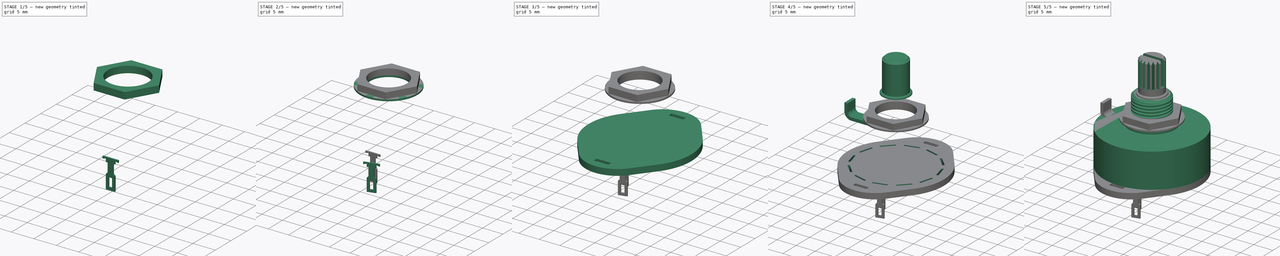
[diagram: build sequence overview — one tinted view per stage of 5, left to right]
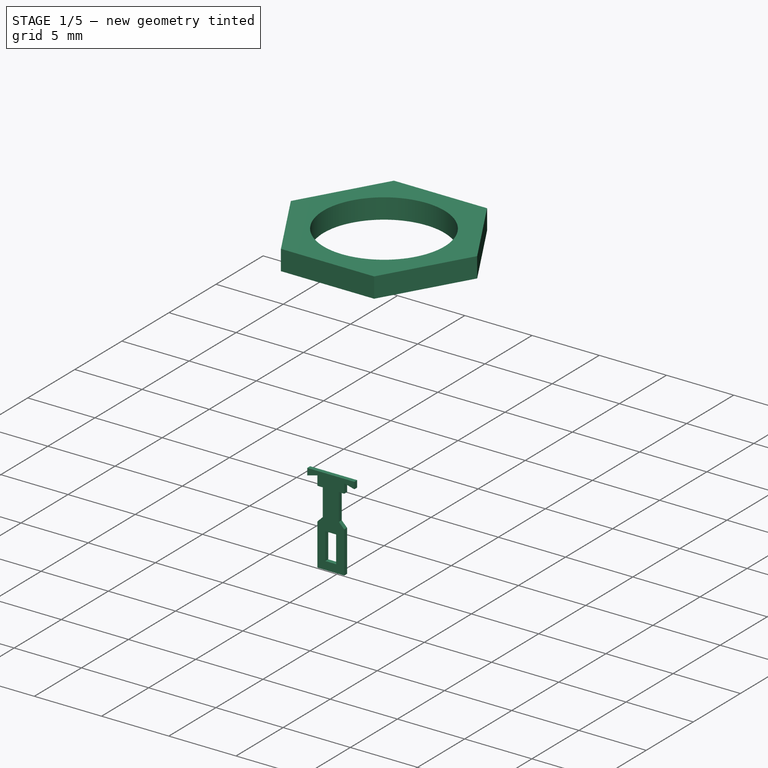
[diagram: stage 1 of 5 — iso view after this stage's code; geometry added in this stage tinted green]
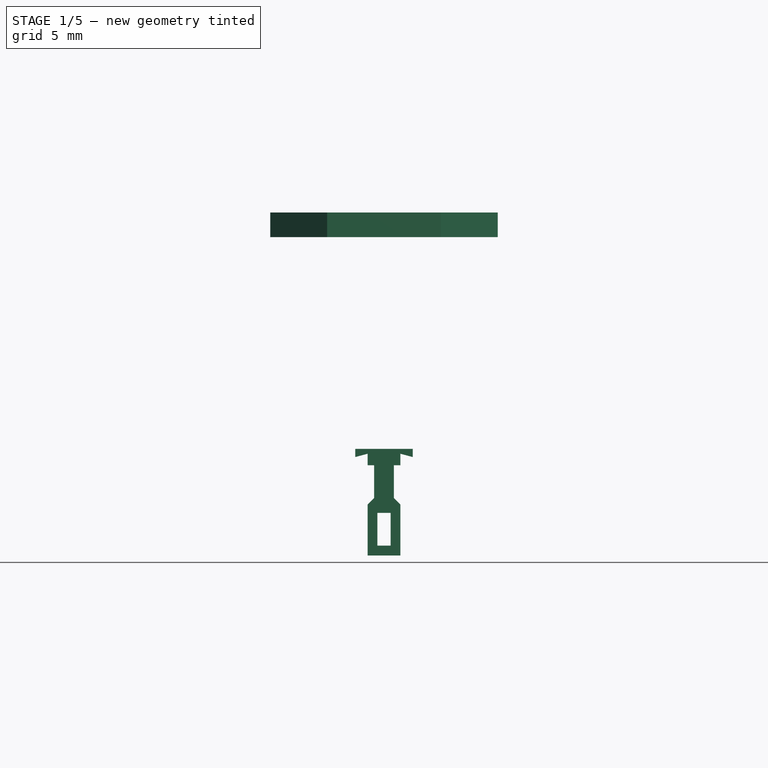
[diagram: stage 1 of 5 — front view after this stage's code; geometry added in this stage tinted green]
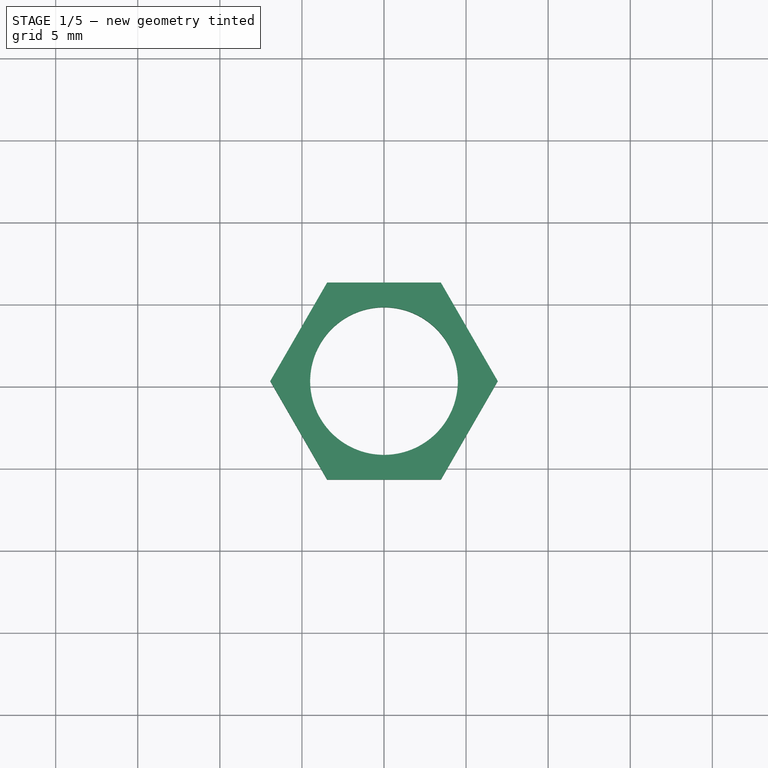
[diagram: stage 1 of 5 — top view after this stage's code; geometry added in this stage tinted green]
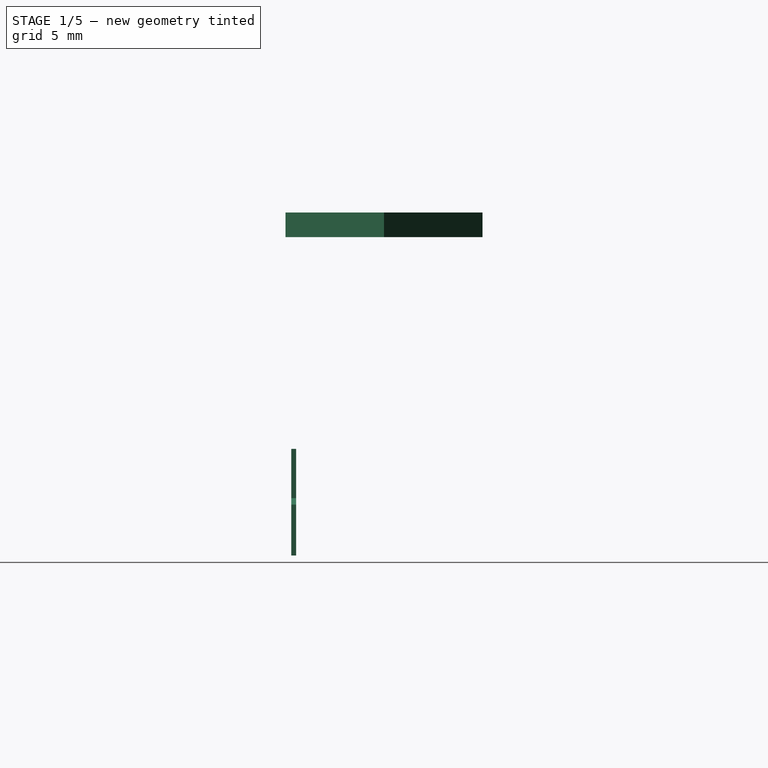
[diagram: stage 1 of 5 — right view after this stage's code; geometry added in this stage tinted green]
FCSTD DOCUMENT  (FreeCAD 0.19R16945 (Git))
Label: Alpha Taiwan SR25 Series
License: All rights reserved
LicenseURL: http://en.wikipedia.org/wiki/All_rights_reserved
objects: PartDesign::Body×28, Sketcher::SketchObject×18, PartDesign::FeatureBase×18, PartDesign::Pad×12, PartDesign::Plane×6, PartDesign::Pocket×5, PartDesign::PolarPattern×4, PartDesign::FeaturePython×3, PartDesign::Chamfer×3, PartDesign::Mirrored×1, PartDesign::MultiTransform×1, Part::Helix×1, PartDesign::ShapeBinder×1, PartDesign::SubtractivePipe×1, PartDesign::Boolean×1
note: 121 computed .brp shape members not serialized (recipe doc carries the construction recipe); baked Part::Feature solids carry a one-line shape summary decoded from their .brp

FEATURE [PartDesign::Body] Body  label="Wafer"
  Group = -> [Sketch,Pad,Sketch006,Pocket,PolarPattern,Sketch014,Pocket004,PolarPattern003]
  Origin = -> Origin
  Tip = -> PolarPattern003
FEATURE [Sketcher::SketchObject] Sketch015
  AttachmentOffset = pos=(0,0,10) rot=(0,1,0;0rad)
  MapMode = 5
  Placement = pos=(0,-10,-2.2e-15) rot=(1,0,0;1.5708rad)
  Support = -> [XZ_Plane008]
  sketch-geometry (20):
    g0: LineSegment StartX=-1 StartY=-6.5 StartZ=0 EndX=-1 EndY=-3.4 EndZ=0
    g1: LineSegment StartX=-1 StartY=-3.4 StartZ=0 EndX=-0.6 EndY=-3 EndZ=0
    g2: LineSegment StartX=-0.6 StartY=-3 StartZ=0 EndX=-0.6 EndY=-1 EndZ=0
    g3: LineSegment StartX=-0.6 StartY=-1 StartZ=0 EndX=-1 EndY=-1 EndZ=0
    g4: LineSegment StartX=-1 StartY=-1 StartZ=0 EndX=-1 EndY=-0.299038 EndZ=0
    g5: LineSegment StartX=-1 StartY=-0.299038 StartZ=0 EndX=-1.75 EndY=-0.5 EndZ=0
    g6: LineSegment StartX=-1.75 StartY=-0.5 StartZ=0 EndX=-1.75 EndY=0 EndZ=0
    g7: LineSegment StartX=1 StartY=-6.5 StartZ=0 EndX=1 EndY=-3.4 EndZ=0
    g8: LineSegment StartX=1 StartY=-3.4 StartZ=0 EndX=0.6 EndY=-3 EndZ=0
    g9: LineSegment StartX=0.6 StartY=-3 StartZ=0 EndX=0.6 EndY=-1 EndZ=0
    g10: LineSegment StartX=0.6 StartY=-1 StartZ=0 EndX=1 EndY=-1 EndZ=0
    g11: LineSegment StartX=1 StartY=-1 StartZ=0 EndX=1 EndY=-0.299038 EndZ=0
    g12: LineSegment StartX=1 StartY=-0.299038 StartZ=0 EndX=1.75 EndY=-0.5 EndZ=0
    g13: LineSegment StartX=1.75 StartY=-0.5 StartZ=0 EndX=1.75 EndY=0 EndZ=0
    g14: LineSegment StartX=-1 StartY=-6.5 StartZ=0 EndX=1 EndY=-6.5 EndZ=0
    g15: LineSegment StartX=-1.75 StartY=0 StartZ=0 EndX=1.75 EndY=0 EndZ=0
    g16: LineSegment StartX=-0.4 StartY=-5.9 StartZ=0 EndX=0.4 EndY=-5.9 EndZ=0
    g17: LineSegment StartX=0.4 StartY=-5.9 StartZ=0 EndX=0.4 EndY=-3.9 EndZ=0
    g18: LineSegment StartX=0.4 StartY=-3.9 StartZ=0 EndX=-0.4 EndY=-3.9 EndZ=0
    g19: LineSegment StartX=-0.4 StartY=-3.9 StartZ=0 EndX=-0.4 EndY=-5.9 EndZ=0
  constraints (57):
    c: Vertical(g0)
    c: Coincident(g0,g1)
    c: Coincident(g1,g2)
    c: Vertical(g2)
    c: Coincident(g2,g3)
    c: Horizontal(g3)
    c: Coincident(g3,g4)
    c: Vertical(g4)
    c: Coincident(g4,g5)
    c: Coincident(g5,g6)
    c: Vertical(g6)
    c: DistanceY(g0,g1) = 3.5
    c: Angle(g0,g1) = 2.35619
    c: DistanceX(g1,g-1) = 0.6
    c: PointOnObject(g6,g-1)
    c: Vertical(g3,g0)
    c: DistanceX(g5,g-1) = 1.75
    c: DistanceY(g0,g6) = 6.5
    c: Vertical(g7)
    c: Coincident(g7,g8)
    c: Coincident(g8,g9)
    c: Vertical(g9)
    c: Coincident(g9,g10)
    c: Horizontal(g10)
    c: Coincident(g10,g11)
    c: Vertical(g11)
    c: Coincident(g11,g12)
    c: Coincident(g12,g13)
    c: Vertical(g13)
    c: Coincident(g14,g0)
    c: Coincident(g14,g7)
    c: Coincident(g15,g6)
    c: Coincident(g15,g13)
    c: Horizontal(g15)
    c: Coincident(g16,g17)
    c: Coincident(g17,g18)
    c: Coincident(g18,g19)
    c: Coincident(g19,g16)
    c: Horizontal(g16)
    c: Vertical(g17)
    c: Vertical(g19)
    c: Symmetric(g17,g18,g-2)
    c: DistanceX(g16,g16) = 0.8
    c: DistanceY(g17,g17) = 2
    c: Equal(g7,g0)
    c: Symmetric(g7,g0,g-2)
    c: DistanceX(g14,g14) = 2
    c: Symmetric(g8,g1,g-2)
    c: Equal(g2,g9)
    c: Equal(g3,g10)
    c: Equal(g4,g11)
    c: Equal(g13,g6)
    c: Angle(g5,g4) = 1.309
    c: Equal(g12,g5)
    c: DistanceY(g6,g6) = 0.5
    c: DistanceY(g7,g16) = 0.6
    c: DistanceY(g3,g6) = 1
FEATURE [PartDesign::Pad] Pad009
  Length = 0.3
  Length2 = 100
  Midplane = true
  Placement = pos=(0,0,0) rot=(1,0,0;1.5708rad)
  Profile = -> Sketch015
  Type = 0
FEATURE [PartDesign::Body] Body019  label="Pin_Throw_12"
  BaseFeature = -> Body008
  Group = -> [Clone011]
  Origin = -> Origin019
  Placement = pos=(0,0,0) rot=(0,0,-1;0.523599rad)
  Tip = -> Clone011
FEATURE [PartDesign::FeatureBase] Clone012
  BaseFeature = -> Body008
FEATURE [PartDesign::Body] Body027  label="Washer"
  Group = -> [Sketch016,Pad010]
  Origin = -> Origin027
  Tip = -> Pad010
FEATURE [Sketcher::SketchObject] Sketch017
  AttachmentOffset = pos=(0,0,12.9) rot=(0,0,1;0rad)
  MapMode = 5
  Placement = pos=(0,0,12.9) rot=(0,0,1;0rad)
  Support = -> [XY_Plane028]
  sketch-geometry (8):
    g0: Circle CenterX=0 CenterY=0 CenterZ=0 NormalX=0 NormalY=0 NormalZ=1 AngleXU=0 Radius=4.5
    g1: LineSegment StartX=6.9282 StartY=-5.0528e-12 StartZ=0 EndX=3.4641 EndY=6 EndZ=0
    g2: LineSegment StartX=3.4641 StartY=6 StartZ=0 EndX=-3.4641 EndY=6 EndZ=0
    g3: LineSegment StartX=-3.4641 StartY=6 StartZ=0 EndX=-6.9282 EndY=5.7572e-12 EndZ=0
    g4: LineSegment StartX=-6.9282 StartY=5.7572e-12 StartZ=0 EndX=-3.4641 EndY=-6 EndZ=0
    g5: LineSegment StartX=-3.4641 StartY=-6 StartZ=0 EndX=3.4641 EndY=-6 EndZ=0
    g6: LineSegment StartX=3.4641 StartY=-6 StartZ=0 EndX=6.9282 EndY=-5.0528e-12 EndZ=0
    g7: Circle [constr] CenterX=0 CenterY=0 CenterZ=0 NormalX=0 NormalY=0 NormalZ=1 AngleXU=0 Radius=6.9282
  constraints (18):
    c: Coincident(g0,g-1)
    c: Radius(g0) = 4.5
    c: Coincident(g1,g2)
    c: Coincident(g2,g3)
    c: Coincident(g3,g4)
    c: Coincident(g4,g5)
    c: Coincident(g5,g6)
    c: Coincident(g6,g1)
    c: Equal(g1, g2-g6) x5
    c: PointOnObject(g1,g7)
    c: PointOnObject(g2,g7)
    c: PointOnObject(g3,g7)
    c: PointOnObject(g4,g7)
    c: PointOnObject(g5,g7)
    c: PointOnObject(g6,g7)
    c: Coincident(g7,g0)
    c: Horizontal(g2)
    c: DistanceY(g5,g1) = 12
FEATURE [PartDesign::Pad] Pad011
  Length = 1.5
  Length2 = 100
  Profile = -> Sketch017
  Type = 0
FEATURE [PartDesign::Body] Body028  label="Nut"
  Group = -> [Sketch017,Pad011]
  Origin = -> Origin028
  Tip = -> Pad011
FEATURE [PartDesign::FeatureBase] Clone013
  BaseFeature = -> Body021
  Placement = pos=(0,4.5,0) rot=(0,0,1;0rad)
FEATURE [PartDesign::Body] Body029  label="Pin_Pole_2"
  BaseFeature = -> Body021
  Group = -> [Clone013]
  Origin = -> Origin029
  Placement = pos=(0,0,0) rot=(0,0,1;1.0472rad)
  Tip = -> Clone013
FEATURE [PartDesign::FeatureBase] Clone014
  BaseFeature = -> Body021
  Placement = pos=(0,4.5,0) rot=(0,0,1;0rad)
FEATURE [PartDesign::Body] Body030  label="Pin_Pole_3"
  BaseFeature = -> Body021
  Group = -> [Clone014]
  Origin = -> Origin030
  Placement = pos=(0,0,0) rot=(0,0,1;2.0944rad)
  Tip = -> Clone014
FEATURE [PartDesign::FeatureBase] Clone015
  BaseFeature = -> Body021
  Placement = pos=(0,4.5,0) rot=(0,0,1;0rad)
FEATURE [PartDesign::Body] Body031  label="Pin_Pole_4"
  BaseFeature = -> Body021
  Group = -> [Clone015]
  Origin = -> Origin031
  Placement = pos=(0,0,0) rot=(0,0,1;3.14159rad)
  Tip = -> Clone015
FEATURE [PartDesign::FeatureBase] Clone016
  BaseFeature = -> Body021
  Placement = pos=(0,4.5,0) rot=(0,0,1;0rad)
FEATURE [PartDesign::Body] Body032  label="Pin_Pole_5"
  BaseFeature = -> Body021
  Group = -> [Clone016]
  Origin = -> Origin032
  Placement = pos=(0,0,0) rot=(0,0,1;4.18879rad)
  Tip = -> Clone016
FEATURE [PartDesign::FeatureBase] Clone017
  BaseFeature = -> Body021
  Placement = pos=(0,4.5,0) rot=(0,0,1;0rad)
FEATURE [PartDesign::Body] Body033  label="Pin_Pole_6"
  BaseFeature = -> Body021
  Group = -> [Clone017]
  Origin = -> Origin033
  Placement = pos=(0,0,0) rot=(0,0,-1;1.0472rad)
  Tip = -> Clone017
FEATURE [PartDesign::Body] Body002  label="Bracket"
  Group = -> [Sketch002,Pad004,MultiTransform,Mirrored,Bend,Bend001,Sketch005,Pad005,Sketch007,Pocket001,PolarPattern001,Boolean]
  Origin = -> Origin002
  Tip = -> Boolean
FEATURE [PartDesign::Body] Body006  label="BracketClone"
  BaseFeature = -> Body002
  Group = -> [Clone]
  Origin = -> Origin006
  Placement = pos=(0,0,0) rot=(0,0,1;3.14159rad)
  Tip = -> Clone
FEATURE [PartDesign::FeatureBase] Clone
  BaseFeature = -> Body002
FEATURE [PartDesign::Boolean] Boolean
  BaseFeature = -> PolarPattern001
  Group = -> [Body006]
  Type = 0
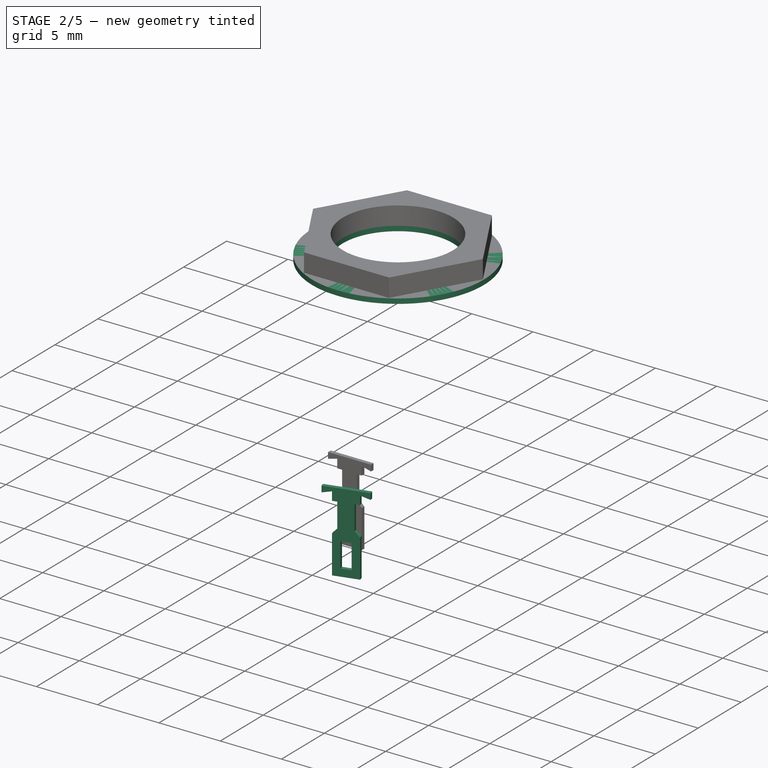
[diagram: stage 2 of 5 — iso view after this stage's code; geometry added in this stage tinted green]
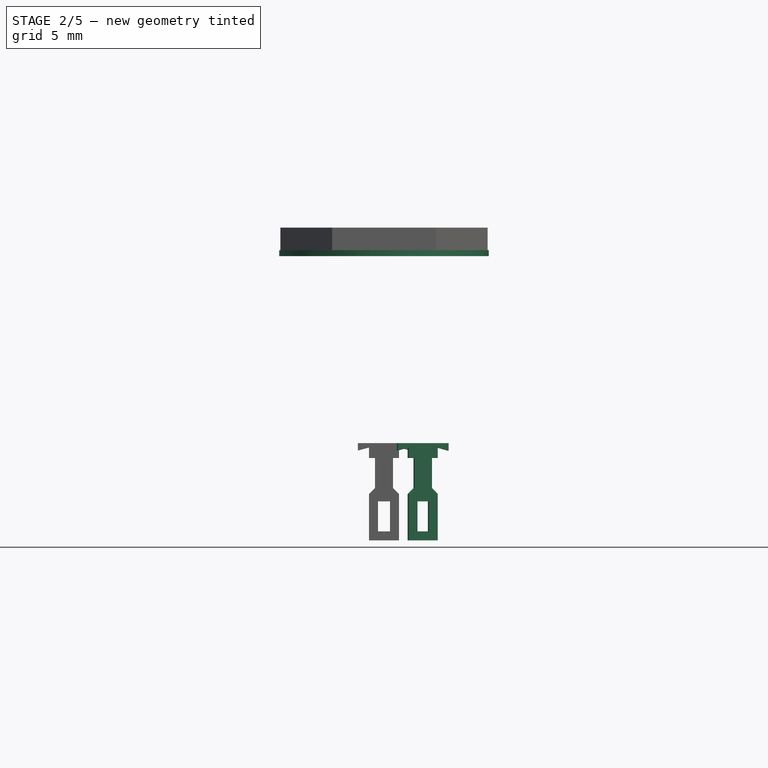
[diagram: stage 2 of 5 — front view after this stage's code; geometry added in this stage tinted green]
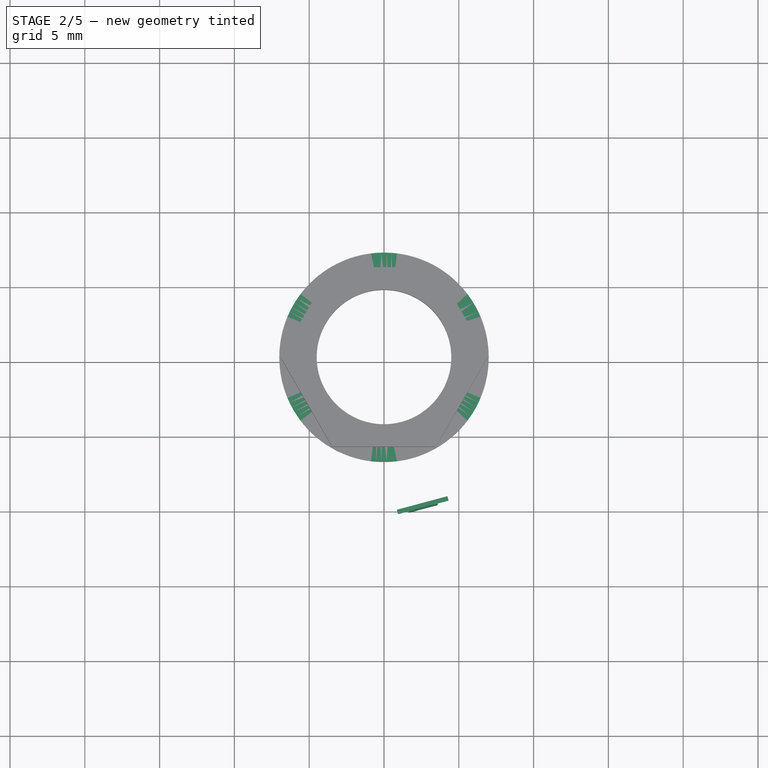
[diagram: stage 2 of 5 — top view after this stage's code; geometry added in this stage tinted green]
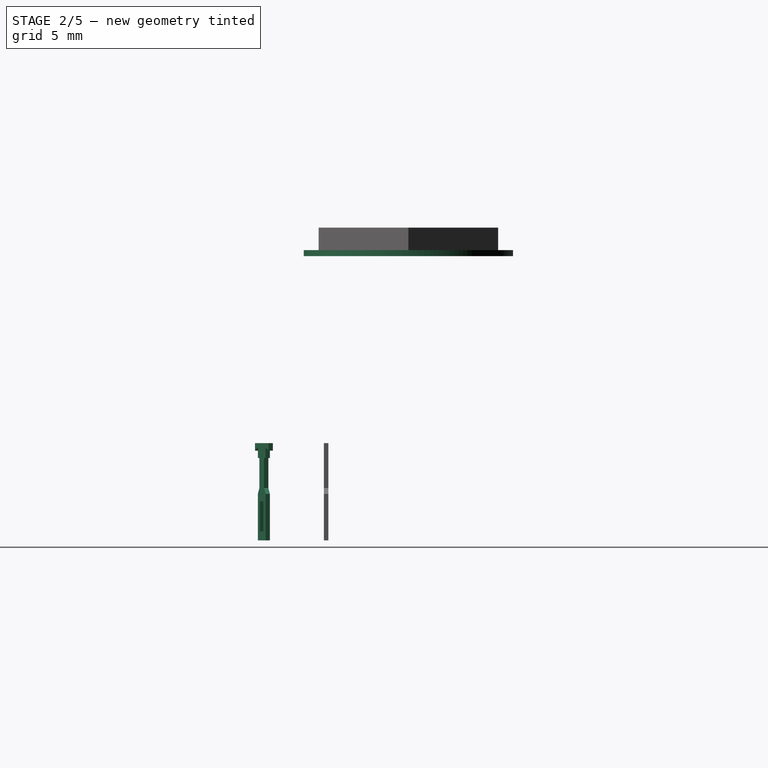
[diagram: stage 2 of 5 — right view after this stage's code; geometry added in this stage tinted green]
FEATURE [PartDesign::Body] Body012  label="Pin_Throw_5"
  BaseFeature = -> Body008
  Group = -> [Clone004]
  Origin = -> Origin012
  Placement = pos=(0,0,0) rot=(0,0,1;2.0944rad)
  Tip = -> Clone004
FEATURE [PartDesign::FeatureBase] Clone005
  BaseFeature = -> Body008
  Placement = pos=(0,0,0) rot=(0,0,1;0.261799rad)
FEATURE [PartDesign::Body] Body013  label="Pin_Throw_6"
  BaseFeature = -> Body008
  Group = -> [Clone005]
  Origin = -> Origin013
  Placement = pos=(0,0,0) rot=(0,0,1;2.61799rad)
  Tip = -> Clone005
FEATURE [PartDesign::FeatureBase] Clone006
  BaseFeature = -> Body008
  Placement = pos=(0,0,0) rot=(0,0,1;0.261799rad)
FEATURE [PartDesign::Body] Body014  label="Pin_Throw_7"
  BaseFeature = -> Body008
  Group = -> [Clone006]
  Origin = -> Origin014
  Placement = pos=(0,0,0) rot=(0,0,1;3.14159rad)
  Tip = -> Clone006
FEATURE [PartDesign::FeatureBase] Clone007
  BaseFeature = -> Body008
  Placement = pos=(0,0,0) rot=(0,0,1;0.261799rad)
FEATURE [PartDesign::Body] Body015  label="Pin_Throw_8"
  BaseFeature = -> Body008
  Group = -> [Clone007]
  Origin = -> Origin015
  Placement = pos=(0,0,0) rot=(0,0,1;3.66519rad)
  Tip = -> Clone007
FEATURE [PartDesign::FeatureBase] Clone008
  BaseFeature = -> Body008
  Placement = pos=(0,0,0) rot=(0,0,1;0.261799rad)
FEATURE [PartDesign::Body] Body016  label="Pin_Throw_9"
  BaseFeature = -> Body008
  Group = -> [Clone008]
  Origin = -> Origin016
  Placement = pos=(0,0,0) rot=(0,0,1;4.18879rad)
  Tip = -> Clone008
FEATURE [PartDesign::FeatureBase] Clone009
  BaseFeature = -> Body008
  Placement = pos=(0,0,0) rot=(0,0,1;0.261799rad)
FEATURE [PartDesign::Body] Body017  label="Pin_Throw_10"
  BaseFeature = -> Body008
  Group = -> [Clone009]
  Origin = -> Origin017
  Placement = pos=(0,0,0) rot=(0,0,-1;1.5708rad)
  Tip = -> Clone009
FEATURE [PartDesign::FeatureBase] Clone010
  BaseFeature = -> Body008
  Placement = pos=(0,0,0) rot=(0,0,1;0.261799rad)
FEATURE [PartDesign::Body] Body018  label="Pin_Throw_11"
  BaseFeature = -> Body008
  Group = -> [Clone010]
  Origin = -> Origin018
  Placement = pos=(0,0,0) rot=(0,0,-1;1.0472rad)
  Tip = -> Clone010
FEATURE [PartDesign::FeatureBase] Clone011
  BaseFeature = -> Body008
  Placement = pos=(0,0,0) rot=(0,0,1;0.261799rad)
FEATURE [PartDesign::Body] Body021  label="Pin_Pole_1"
  BaseFeature = -> Body008
  Group = -> [Clone012]
  Origin = -> Origin021
  Placement = pos=(0,4.5,0) rot=(0,0,1;0rad)
  Tip = -> Clone012
FEATURE [Sketcher::SketchObject] Sketch016
  AttachmentOffset = pos=(0,0,12.5) rot=(0,0,1;0rad)
  MapMode = 5
  Placement = pos=(0,0,12.5) rot=(0,0,1;0rad)
  Support = -> [XY_Plane027]
  sketch-geometry (2):
    g0: Circle CenterX=0 CenterY=0 CenterZ=0 NormalX=0 NormalY=0 NormalZ=1 AngleXU=0 Radius=4.5
    g1: Circle CenterX=0 CenterY=0 CenterZ=0 NormalX=0 NormalY=0 NormalZ=1 AngleXU=0 Radius=7
  constraints (4):
    c: Coincident(g0,g-1)
    c: Coincident(g1,g0)
    c: Radius(g0) = 4.5
    c: Radius(g1) = 7
FEATURE [PartDesign::Pad] Pad010
  Length = 0.4
  Length2 = 100
  Profile = -> Sketch016
  Type = 0
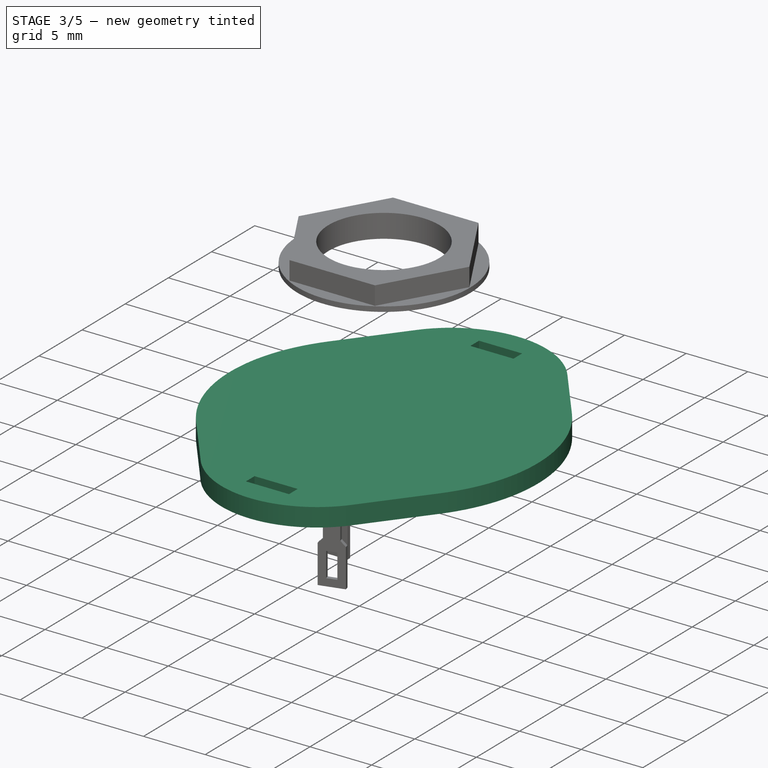
[diagram: stage 3 of 5 — iso view after this stage's code; geometry added in this stage tinted green]
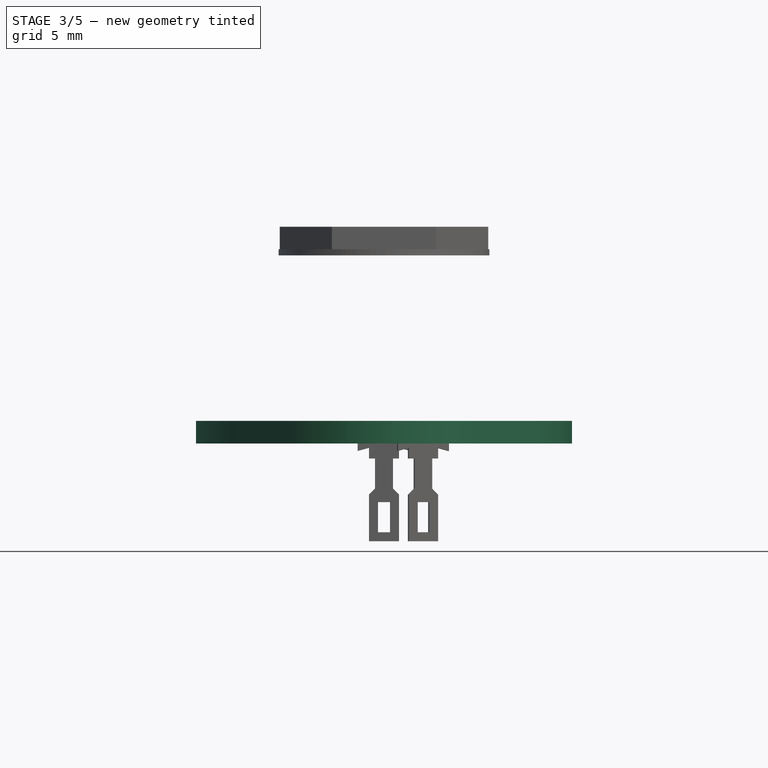
[diagram: stage 3 of 5 — front view after this stage's code; geometry added in this stage tinted green]
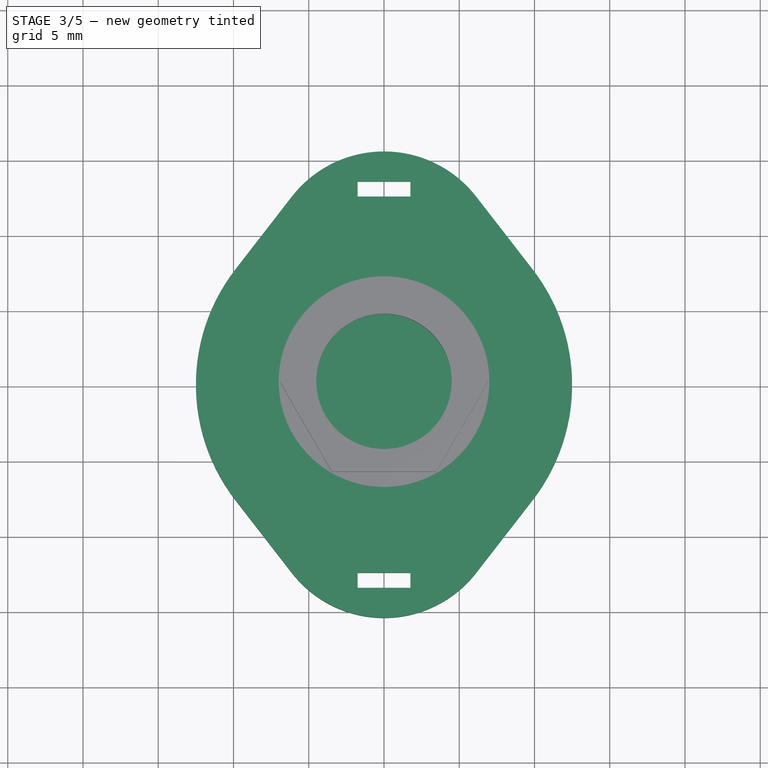
[diagram: stage 3 of 5 — top view after this stage's code; geometry added in this stage tinted green]
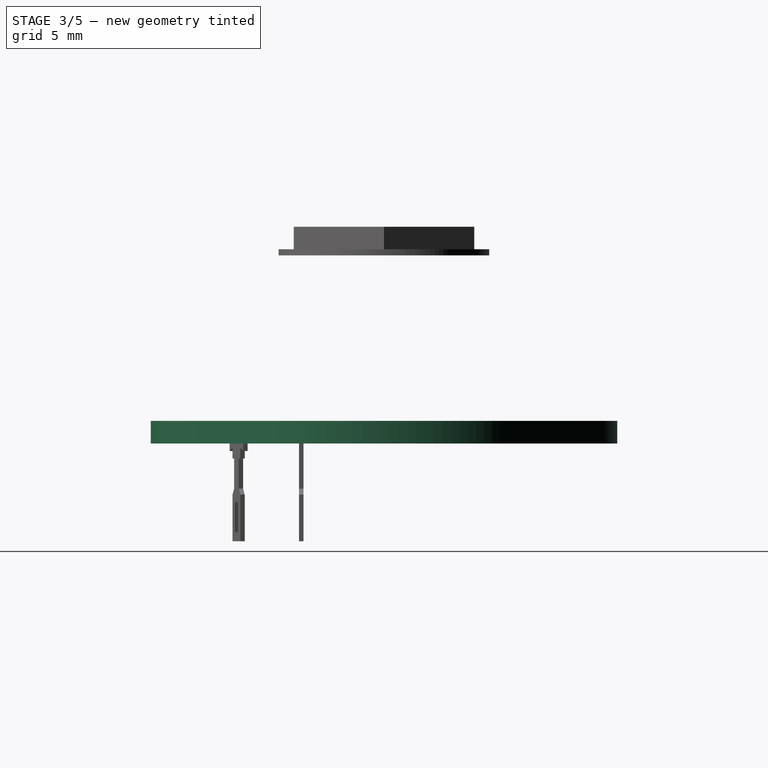
[diagram: stage 3 of 5 — right view after this stage's code; geometry added in this stage tinted green]
FEATURE [Sketcher::SketchObject] Sketch
  MapMode = 5
  Support = -> [XY_Plane]
  sketch-geometry (12):
    g0: Circle [constr] CenterX=0 CenterY=0 CenterZ=0 NormalX=0 NormalY=0 NormalZ=1 AngleXU=0 Radius=12.5
    g1: Circle [constr] CenterX=0 CenterY=0 CenterZ=0 NormalX=0 NormalY=0 NormalZ=1 AngleXU=0 Radius=15.5
    g2: Circle [constr] CenterX=0 CenterY=7.75 CenterZ=0 NormalX=0 NormalY=0 NormalZ=1 AngleXU=0 Radius=7.75
    g3: Circle [constr] CenterX=0 CenterY=-7.75 CenterZ=0 NormalX=0 NormalY=0 NormalZ=1 AngleXU=0 Radius=7.75
    g4: ArcOfCircle CenterX=0 CenterY=0 CenterZ=0 NormalX=0 NormalY=0 NormalZ=1 AngleXU=0 Radius=12.5 StartAngle=2.48186 EndAngle=3.80132
    g5: ArcOfCircle CenterX=0 CenterY=0 CenterZ=0 NormalX=0 NormalY=0 NormalZ=1 AngleXU=0 Radius=12.5 StartAngle=5.62346 EndAngle=6.94291
    g6: ArcOfCircle CenterX=0 CenterY=-7.75 CenterZ=0 NormalX=0 NormalY=0 NormalZ=1 AngleXU=0 Radius=7.75 StartAngle=3.80132 EndAngle=5.62346
    g7: LineSegment StartX=-9.87697 StartY=-7.66129 StartZ=0 EndX=-6.12372 EndY=-12.5 EndZ=0
    g8: LineSegment StartX=6.12372 StartY=-12.5 StartZ=0 EndX=9.877 EndY=-7.66126 EndZ=0
    g9: ArcOfCircle CenterX=0 CenterY=7.75 CenterZ=0 NormalX=0 NormalY=0 NormalZ=1 AngleXU=0 Radius=7.75 StartAngle=0.659726 EndAngle=2.48186
    g10: LineSegment StartX=-9.87697 StartY=7.66129 StartZ=0 EndX=-6.12372 EndY=12.5 EndZ=0
    g11: LineSegment StartX=6.12374 StartY=12.5 StartZ=0 EndX=9.877 EndY=7.66126 EndZ=0
  constraints (32):
    c: Coincident(g0,g-1)
    c: Coincident(g1,g-1)
    c: Radius(g0) = 12.5
    c: Radius(g1) = 15.5
    c: PointOnObject(g2,g-2)
    c: Tangent(g2,g1)
    c: PointOnObject(g3,g-2)
    c: Tangent(g3,g1)
    c: Coincident(g4,g-1)
    c: Symmetric(g4,g4,g-1)
    c: Coincident(g5,g4)
    c: Symmetric(g5,g5,g-1)
    c: Tangent(g3,g-1)
    c: Tangent(g2,g-1)
    c: Coincident(g6,g3)
    c: PointOnObject(g6,g3)
    c: Tangent(g7,g6) = -1.5708
    c: Tangent(g7,g4) = -1.5708
    c: Coincident(g8,g5)
    c: Tangent(g8,g0)
    c: Tangent(g8,g6) = -1.5708
    c: Coincident(g9,g2)
    c: PointOnObject(g9,g2)
    c: Coincident(g10,g4)
    c: Coincident(g10,g9)
    c: Tangent(g10,g0)
    c: Coincident(g11,g9)
    c: Coincident(g11,g5)
    c: Tangent(g10,g4)
    c: Tangent(g10,g9)
    c: Tangent(g9,g11)
    c: Tangent(g5,g11)
FEATURE [PartDesign::Pad] Pad
  Length = 1.5
  Length2 = 100
  Profile = -> Sketch
  Type = 0
FEATURE [PartDesign::Pad] Pad004
  Length = 1
  Length2 = 100
  Placement = pos=(0,0,0) rot=(1,0,0;1.5708rad)
  Profile = -> Sketch002
  Reversed = true
  Type = 0
FEATURE [PartDesign::Mirrored] Mirrored
  MirrorPlane = -> Sketch002 [V_Axis]
  Placement = pos=(0,0,0) rot=(1,0,0;1.5708rad)
FEATURE [PartDesign::MultiTransform] MultiTransform
  BaseFeature = -> Pad004
  Originals = -> [Pad004]
  Placement = pos=(0,0,0) rot=(1,0,0;1.5708rad)
  Transformations = -> [Mirrored]
FEATURE [PartDesign::FeaturePython] Bend  # WARN: FeaturePython — macro-defined, semantics opaque (R4)
  AutoMiter = true
  BaseFeature = -> MultiTransform
  BendType = 0
  LengthList = [2]
  ReliefFactor = 0.7
  UseReliefFactor = false
  angle = 90
  baseObject = -> MultiTransform [Face28,Face2]
  bendAList = [90]
  extend1 = 0
  extend2 = 0
  gap1 = 0
  gap2 = 0
  invert = false
  kfactor = 0.5
  length = 2
  miterangle1 = 0
  miterangle2 = 0
  offset = 0
  radius = 0.001
  reliefType = 0
  reliefd = 1
  reliefw = 0.8
  sketchflip = false
  sketchinvert = false
  unfold = false
FEATURE [PartDesign::FeaturePython] Bend001  # WARN: FeaturePython — macro-defined, semantics opaque (R4)
  AutoMiter = true
  BaseFeature = -> Bend
  BendType = 0
  LengthList = [2]
  ReliefFactor = 0.7
  UseReliefFactor = false
  angle = 90
  baseObject = -> MultiTransform [Face28,Face2]
  bendAList = [90]
  extend1 = 0
  extend2 = 0
  gap1 = 0
  gap2 = 0
  invert = false
  kfactor = 0.5
  length = 2
  miterangle1 = 0
  miterangle2 = 0
  offset = 0
  radius = 0.001
  reliefType = 0
  reliefd = 1
  reliefw = 0.8
  sketchflip = false
  sketchinvert = false
  unfold = false
FEATURE [Sketcher::SketchObject] Sketch005
  AttachmentOffset = pos=(0,0,10.5) rot=(0,0,1;0rad)
  MapMode = 5
  Placement = pos=(0,0,10.5) rot=(0,0,1;0rad)
  Support = -> [XY_Plane002]
  sketch-geometry (1):
    g0: Circle CenterX=0 CenterY=0 CenterZ=0 NormalX=0 NormalY=0 NormalZ=1 AngleXU=0 Radius=12
  constraints (2):
    c: Coincident(g0,g-1)
    c: Radius(g0) = 12
FEATURE [PartDesign::Pad] Pad005
  BaseFeature = -> Bend001
  Length = 1.05
  Length2 = 100
  Profile = -> Sketch005
  Type = 0
FEATURE [Sketcher::SketchObject] Sketch006
  MapMode = 5
  Support = -> [XY_Plane]
  sketch-geometry (4):
    g0: LineSegment StartX=-1.75 StartY=-12.5 StartZ=0 EndX=1.75 EndY=-12.5 EndZ=0
    g1: LineSegment StartX=1.75 StartY=-12.5 StartZ=0 EndX=1.75 EndY=-13.5 EndZ=0
    g2: LineSegment StartX=1.75 StartY=-13.5 StartZ=0 EndX=-1.75 EndY=-13.5 EndZ=0
    g3: LineSegment StartX=-1.75 StartY=-13.5 StartZ=0 EndX=-1.75 EndY=-12.5 EndZ=0
  constraints (11):
    c: Coincident(g0,g1)
    c: Coincident(g1,g2)
    c: Coincident(g2,g3)
    c: Coincident(g3,g0)
    c: Horizontal(g2)
    c: Vertical(g1)
    c: Vertical(g3)
    c: Symmetric(g0,g0,g-2)
    c: DistanceY(g1,g1) = 1
    c: DistanceX(g2,g2) = 3.5
    c: DistanceY(g1,g-1) = 13.5
FEATURE [PartDesign::Pocket] Pocket
  BaseFeature = -> Pad
  Length = 1
  Length2 = 100
  Profile = -> Sketch006
  Reversed = true
  Type = 1
FEATURE [PartDesign::PolarPattern] PolarPattern
  Angle = 360
  Axis = -> Sketch006 [N_Axis]
  BaseFeature = -> Pocket
  Occurrences = 2
  Originals = -> [Pocket]
FEATURE [PartDesign::Body] Body008  label="Pin_Throw_1"
  Group = -> [Sketch015,Pad009]
  Origin = -> Origin008
  Placement = pos=(0,0,0) rot=(0,0,1;0.261799rad)
  Tip = -> Pad009
FEATURE [PartDesign::FeatureBase] Clone001
  BaseFeature = -> Body008
  Placement = pos=(0,0,0) rot=(0,0,1;0.261799rad)
FEATURE [PartDesign::Body] Body009  label="Pin_Throw_2"
  BaseFeature = -> Body008
  Group = -> [Clone001]
  Origin = -> Origin009
  Placement = pos=(0,0,0) rot=(0,0,1;0.523599rad)
  Tip = -> Clone001
FEATURE [PartDesign::FeatureBase] Clone002
  BaseFeature = -> Body008
  Placement = pos=(0,0,0) rot=(0,0,1;0.261799rad)
FEATURE [PartDesign::Body] Body010  label="Pin_Throw_3"
  BaseFeature = -> Body008
  Group = -> [Clone002]
  Origin = -> Origin010
  Placement = pos=(0,0,0) rot=(0,0,1;1.0472rad)
  Tip = -> Clone002
FEATURE [PartDesign::FeatureBase] Clone003
  BaseFeature = -> Body008
  Placement = pos=(0,0,0) rot=(0,0,1;0.261799rad)
FEATURE [PartDesign::Body] Body011  label="Pin_Throw_4"
  BaseFeature = -> Body008
  Group = -> [Clone003]
  Origin = -> Origin011
  Placement = pos=(0,0,0) rot=(0,0,1;1.5708rad)
  Tip = -> Clone003
FEATURE [PartDesign::FeatureBase] Clone004
  BaseFeature = -> Body008
  Placement = pos=(0,0,0) rot=(0,0,1;0.261799rad)
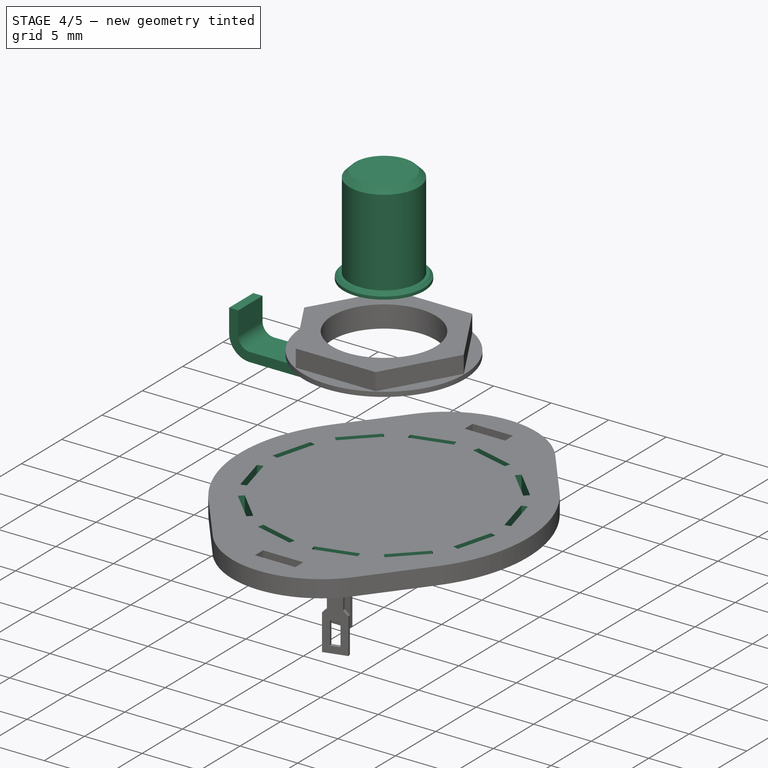
[diagram: stage 4 of 5 — iso view after this stage's code; geometry added in this stage tinted green]
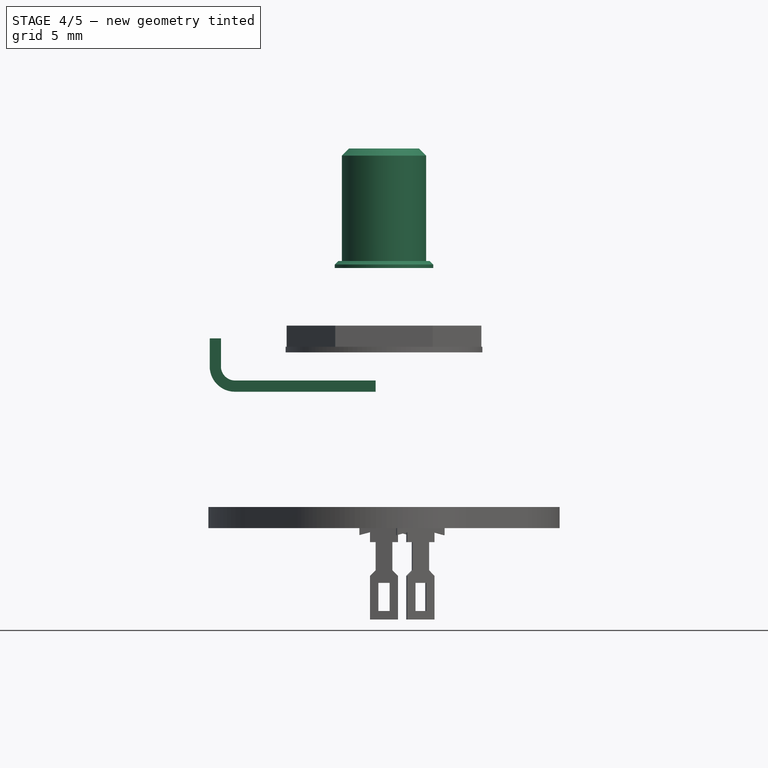
[diagram: stage 4 of 5 — front view after this stage's code; geometry added in this stage tinted green]
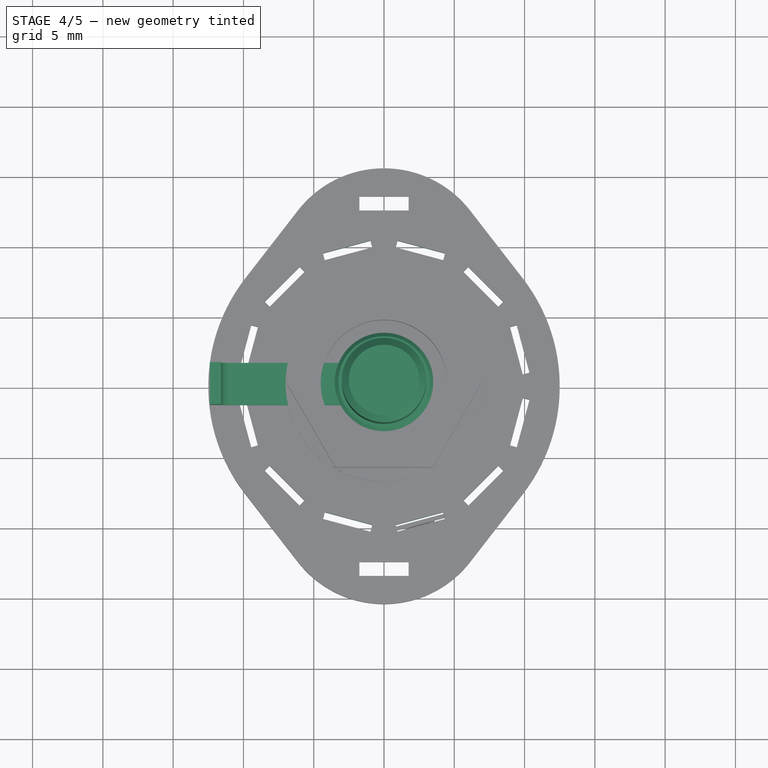
[diagram: stage 4 of 5 — top view after this stage's code; geometry added in this stage tinted green]
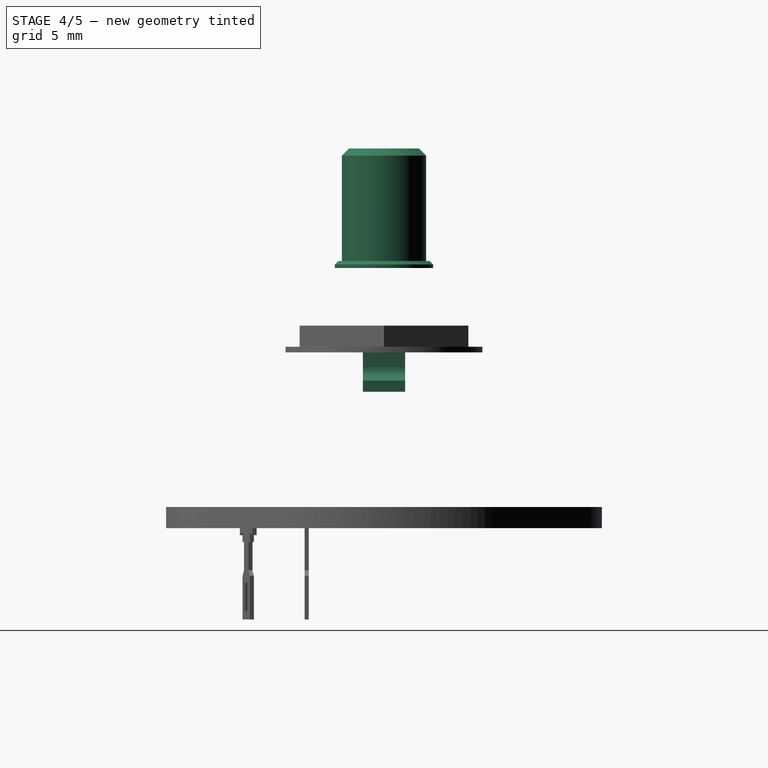
[diagram: stage 4 of 5 — right view after this stage's code; geometry added in this stage tinted green]
FEATURE [PartDesign::Body] Body004  label="Bushing"
  Group = -> [Sketch003,Pad002,Sketch004,Pad003,Chamfer,ShapeBinder,Sketch008,SubtractivePipe]
  Origin = -> Origin004
  Tip = -> SubtractivePipe
FEATURE [Sketcher::SketchObject] Sketch009
  AttachmentOffset = pos=(0,0,18.5) rot=(0,0,1;0rad)
  MapMode = 5
  Placement = pos=(0,0,18.5) rot=(0,0,1;0rad)
  Support = -> [XY_Plane005]
  sketch-geometry (1):
    g0: Circle CenterX=0 CenterY=0 CenterZ=0 NormalX=0 NormalY=0 NormalZ=1 AngleXU=0 Radius=3.5
  constraints (2):
    c: Coincident(g0,g-1)
    c: Radius(g0) = 3.5
FEATURE [PartDesign::Pad] Pad006
  Length = 0.5
  Length2 = 100
  Profile = -> Sketch009
  Type = 0
FEATURE [PartDesign::Chamfer] Chamfer001
  Base = -> Pad006 [Edge3]
  BaseFeature = -> Pad006
  Size = 0.25
FEATURE [Sketcher::SketchObject] Sketch010
  MapMode = 5
  Placement = pos=(0,0,19) rot=(0,0,1;0rad)
  Support = -> [Chamfer001]
  sketch-geometry (1):
    g0: Circle CenterX=0 CenterY=0 CenterZ=0 NormalX=0 NormalY=0 NormalZ=1 AngleXU=0 Radius=3
  constraints (2):
    c: Coincident(g0,g-1)
    c: Radius(g0) = 3
FEATURE [PartDesign::Pad] Pad007
  BaseFeature = -> Chamfer001
  Length = 8
  Length2 = 100
  Profile = -> Sketch010
  Type = 0
FEATURE [PartDesign::Plane] DatumPlane003  label="z=12.5"
  AttachmentOffset = pos=(0,0,12.5) rot=(0,0,1;0rad)
  Length = 24
  MapMode = 5
  Placement = pos=(0,0,12.5) rot=(0,0,1;0rad)
  ResizeMode = 0
  Support = -> [XY_Plane003]
  Width = 24
FEATURE [PartDesign::Plane] DatumPlane004  label="BushingHeight=6"
  AttachmentOffset = pos=(0,0,6) rot=(0,0,1;0rad)
  Length = 24
  MapMode = 5
  Placement = pos=(0,0,18.5) rot=(0,0,1;0rad)
  ResizeMode = 0
  Support = -> [DatumPlane003]
  Width = 24
FEATURE [PartDesign::Plane] DatumPlane005  label="ShaftLength=15"
  AttachmentOffset = pos=(0,0,15) rot=(0,0,1;0rad)
  Length = 24
  MapMode = 5
  Placement = pos=(0,0,27.5) rot=(0,0,1;0rad)
  ResizeMode = 0
  Support = -> [DatumPlane003]
  Width = 24
FEATURE [PartDesign::Body] Body003  label="RefPlanes"
  Group = -> [DatumPlane,DatumPlane001,DatumPlane002,DatumPlane003,DatumPlane004,DatumPlane005]
  Origin = -> Origin003
FEATURE [Sketcher::SketchObject] Sketch011
  MapMode = 5
  Placement = pos=(0,0,27) rot=(0,0,1;0rad)
  Support = -> [Pad007]
  sketch-geometry (4):
    g0: LineSegment StartX=1e-16 StartY=2.5 StartZ=0 EndX=0.433013 EndY=3.25 EndZ=0
    g1: LineSegment StartX=0.433013 StartY=3.25 StartZ=0 EndX=-0.433013 EndY=3.25 EndZ=0
    g2: LineSegment StartX=-0.433013 StartY=3.25 StartZ=0 EndX=1e-16 EndY=2.5 EndZ=0
    g3: Circle [constr] CenterX=0 CenterY=3 CenterZ=0 NormalX=0 NormalY=0 NormalZ=1 AngleXU=0 Radius=0.5
  constraints (12):
    c: Coincident(g0,g1)
    c: Coincident(g1,g2)
    c: Coincident(g2,g0)
    c: Equal(g0,g1)
    c: Equal(g0,g2)
    c: PointOnObject(g0,g3)
    c: PointOnObject(g1,g3)
    c: PointOnObject(g2,g3)
    c: PointOnObject(g3,g-2)
    c: PointOnObject(g2,g-2)
    c: DistanceY(g0,g3) = 0.5
    c: DistanceY(g-1,g0) = 2.5
FEATURE [PartDesign::Chamfer] Chamfer002
  Base = -> Pad007 [Edge8]
  BaseFeature = -> Pad007
  Size = 0.5
FEATURE [PartDesign::Body] Body005  label="Shaft"
  Group = -> [Sketch009,Pad006,Chamfer001,Sketch010,Pad007,Sketch011,Chamfer002,Pocket002,PolarPattern002,Sketch012,Pocket003]
  Origin = -> Origin005
  Tip = -> Pocket003
FEATURE [Sketcher::SketchObject] Sketch013
  AttachmentOffset = pos=(0,0,11.5) rot=(0,0,1;0rad)
  MapMode = 5
  Placement = pos=(0,0,11.5) rot=(0,0,1;0rad)
  Support = -> [XY_Plane007]
  sketch-geometry (6):
    g0: LineSegment StartX=-12.4 StartY=1.5 StartZ=0 EndX=-11.6 EndY=1.5 EndZ=0
    g1: LineSegment StartX=-11.6 StartY=1.5 StartZ=0 EndX=-11.6 EndY=-1.5 EndZ=0
    g2: LineSegment StartX=-11.6 StartY=-1.5 StartZ=0 EndX=-12.4 EndY=-1.5 EndZ=0
    g3: LineSegment StartX=-12.4 StartY=-1.5 StartZ=0 EndX=-12.4 EndY=1.5 EndZ=0
    g4: LineSegment [constr] StartX=-11.6 StartY=1.5 StartZ=0 EndX=-12.4 EndY=-1.5 EndZ=0
    g5: GeomPoint X=-12 Y=0 Z=0
  constraints (15):
    c: Coincident(g0,g1)
    c: Coincident(g1,g2)
    c: Coincident(g2,g3)
    c: Coincident(g3,g0)
    c: Horizontal(g0)
    c: Horizontal(g2)
    c: Vertical(g3)
    c: DistanceY(g1,g1) = 3
    c: DistanceX(g0,g0) = 0.8
    c: Coincident(g4,g0)
    c: Coincident(g4,g2)
    c: PointOnObject(g5,g4)
    c: PointOnObject(g5,g-1)
    c: Symmetric(g1,g0,g-1)
    c: DistanceX(g5,g-1) = 12
FEATURE [PartDesign::Pad] Pad008
  Length = 2
  Length2 = 100
  Profile = -> Sketch013
  Type = 0
FEATURE [PartDesign::FeaturePython] Bend002  # WARN: FeaturePython — macro-defined, semantics opaque (R4)
  AutoMiter = true
  BaseFeature = -> Pad008
  BendType = 0
  LengthList = [10]
  ReliefFactor = 0.7
  UseReliefFactor = false
  angle = 90
  baseObject = -> Pad008 [Face5]
  bendAList = [90]
  extend1 = 0
  extend2 = 0
  gap1 = 0
  gap2 = 0
  invert = false
  kfactor = 0.5
  length = 10
  miterangle1 = 0
  miterangle2 = 0
  offset = 0
  radius = 1
  reliefType = 0
  reliefd = 1
  reliefw = 0.8
  sketchflip = false
  sketchinvert = false
  unfold = false
FEATURE [PartDesign::Body] Body007  label="Tab"
  Group = -> [Sketch013,Pad008,Bend002]
  Origin = -> Origin007
  Tip = -> Bend002
FEATURE [Sketcher::SketchObject] Sketch014
  AttachmentOffset = pos=(0,0,0) rot=(0,0,1;0.261799rad)
  MapMode = 5
  Placement = pos=(0,0,0) rot=(0,0,1;0.261799rad)
  Support = -> [XY_Plane]
  sketch-geometry (6):
    g0: LineSegment StartX=-10.25 StartY=1.75 StartZ=0 EndX=-9.75 EndY=1.75 EndZ=0
    g1: LineSegment StartX=-9.75 StartY=1.75 StartZ=0 EndX=-9.75 EndY=-1.75 EndZ=0
    g2: LineSegment StartX=-9.75 StartY=-1.75 StartZ=0 EndX=-10.25 EndY=-1.75 EndZ=0
    g3: LineSegment StartX=-10.25 StartY=-1.75 StartZ=0 EndX=-10.25 EndY=1.75 EndZ=0
    g4: LineSegment [constr] StartX=-10.25 StartY=-1.75 StartZ=0 EndX=-9.75 EndY=1.75 EndZ=0
    g5: GeomPoint X=-10 Y=0 Z=0
  constraints (15):
    c: Coincident(g0,g1)
    c: Coincident(g1,g2)
    c: Coincident(g2,g3)
    c: Coincident(g3,g0)
    c: Horizontal(g0)
    c: Horizontal(g2)
    c: Vertical(g3)
    c: Symmetric(g0,g1,g-1)
    c: DistanceX(g0,g0) = 0.5
    c: DistanceY(g1,g1) = 3.5
    c: Coincident(g4,g2)
    c: Coincident(g4,g0)
    c: PointOnObject(g5,g4)
    c: PointOnObject(g5,g-1)
    c: DistanceX(g5,g-1) = 10
FEATURE [PartDesign::Pocket] Pocket004
  BaseFeature = -> PolarPattern
  Length = 5
  Length2 = 100
  Profile = -> Sketch014
  Reversed = true
  Type = 1
FEATURE [PartDesign::PolarPattern] PolarPattern003
  Angle = 360
  Axis = -> Sketch014 [N_Axis]
  BaseFeature = -> Pocket004
  Occurrences = 12
  Originals = -> [Pocket004]
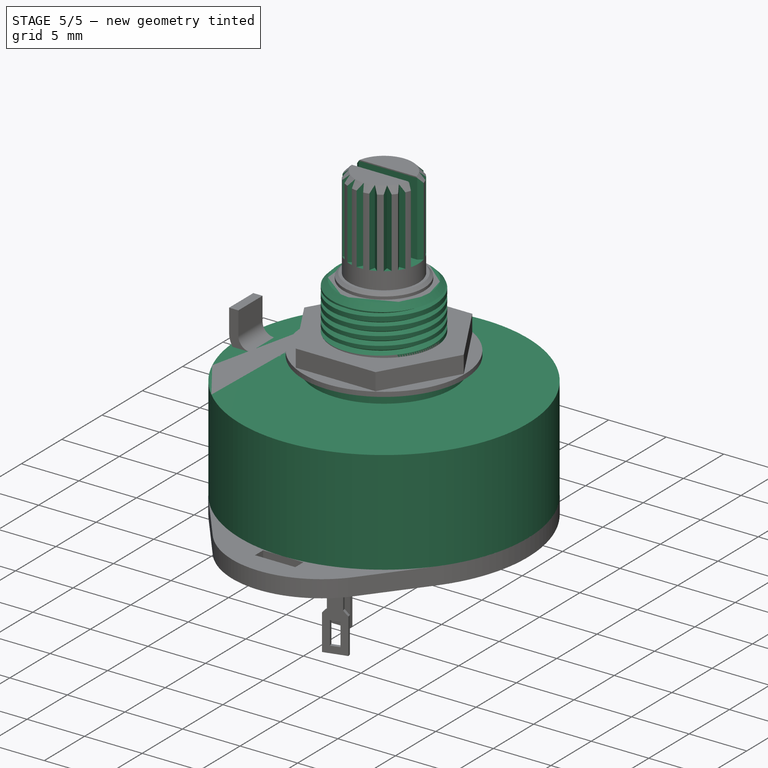
[diagram: stage 5 of 5 — iso view after this stage's code; geometry added in this stage tinted green]
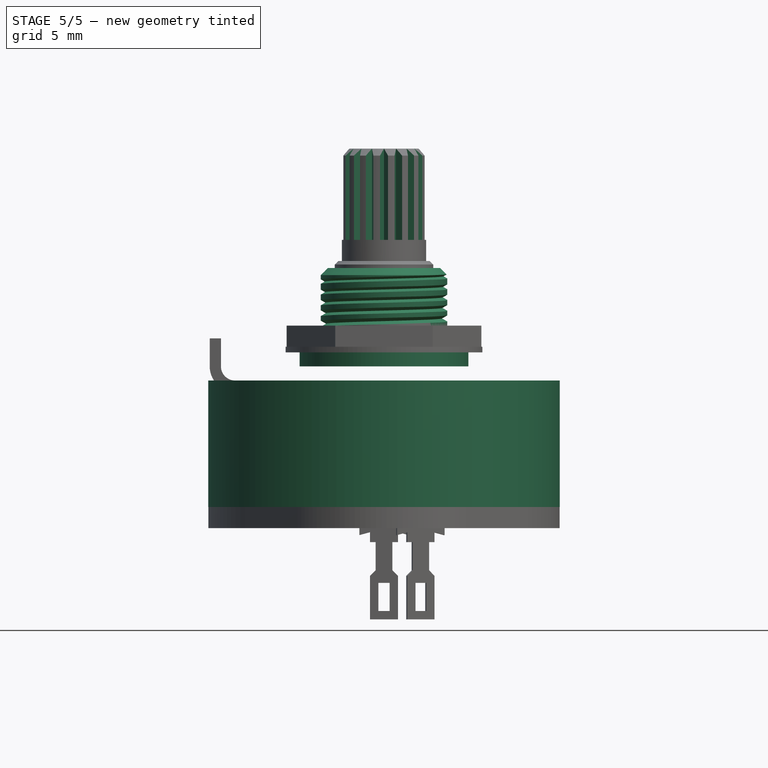
[diagram: stage 5 of 5 — front view after this stage's code; geometry added in this stage tinted green]
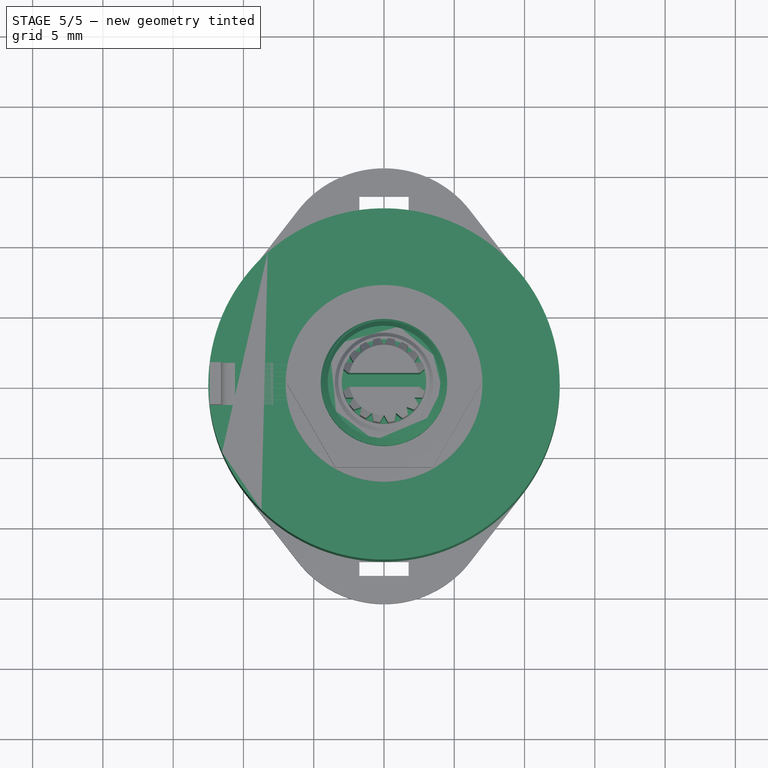
[diagram: stage 5 of 5 — top view after this stage's code; geometry added in this stage tinted green]
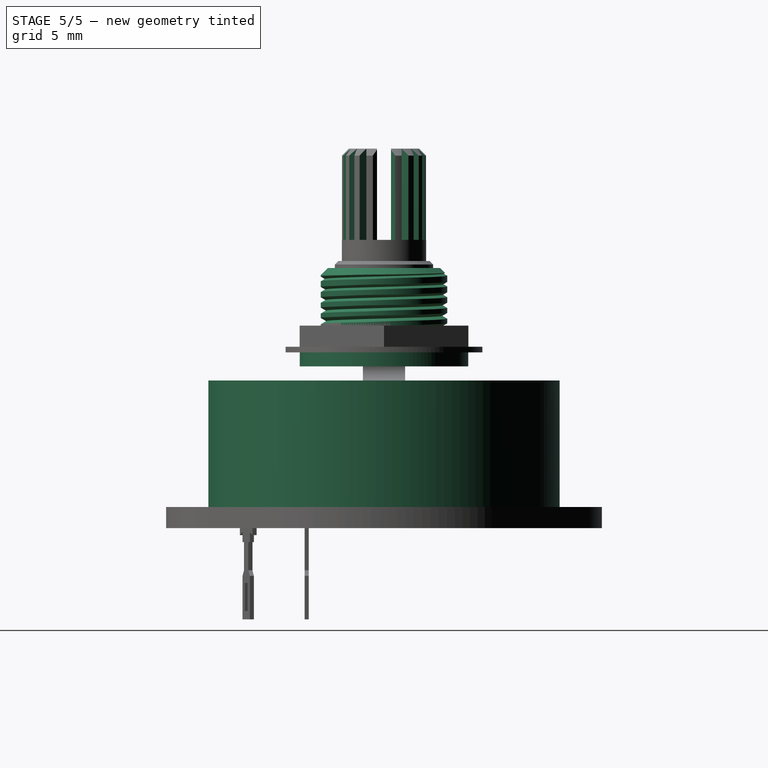
[diagram: stage 5 of 5 — right view after this stage's code; geometry added in this stage tinted green]
FEATURE [Sketcher::SketchObject] Sketch001
  AttachmentOffset = pos=(0,0,1.5) rot=(0,0,1;0rad)
  MapMode = 5
  Placement = pos=(0,0,1.5) rot=(0,0,1;0rad)
  Support = -> [XY_Plane001]
  sketch-geometry (1):
    g0: Circle CenterX=0 CenterY=0 CenterZ=0 NormalX=0 NormalY=0 NormalZ=1 AngleXU=0 Radius=12.5
  constraints (2):
    c: Coincident(g0,g-1)
    c: Radius(g0) = 12.5
FEATURE [PartDesign::Pad] Pad001
  Length = 9
  Length2 = 100
  Profile = -> Sketch001
  Type = 0
FEATURE [PartDesign::Body] Body001  label="Housing"
  Group = -> [Sketch001,Pad001]
  Origin = -> Origin001
  Tip = -> Pad001
FEATURE [PartDesign::Plane] DatumPlane  label="z=0"
  Length = 24
  MapMode = 5
  ResizeMode = 0
  Support = -> [XY_Plane003]
  Width = 24
FEATURE [PartDesign::Plane] DatumPlane001  label="z=1.5"
  AttachmentOffset = pos=(0,0,1.5) rot=(0,0,1;0rad)
  Length = 24
  MapMode = 5
  Placement = pos=(0,0,1.5) rot=(0,0,1;0rad)
  ResizeMode = 0
  Support = -> [XY_Plane003]
  Width = 24
FEATURE [PartDesign::Plane] DatumPlane002  label="z=11.5"
  AttachmentOffset = pos=(0,0,11.5) rot=(0,0,1;0rad)
  Length = 24
  MapMode = 5
  Placement = pos=(0,0,11.5) rot=(0,0,1;0rad)
  ResizeMode = 0
  Support = -> [XY_Plane003]
  Width = 24
FEATURE [Sketcher::SketchObject] Sketch002
  AttachmentOffset = pos=(0,0,13.5) rot=(0,0,1;0rad)
  MapMode = 5
  Placement = pos=(0,-13.5,-3e-15) rot=(1,0,0;1.5708rad)
  Support = -> [XZ_Plane002]
  sketch-geometry (13):
    g0: LineSegment StartX=-5 StartY=10.5 StartZ=0 EndX=-5 EndY=5.5 EndZ=0
    g1: LineSegment StartX=-5 StartY=5.5 StartZ=0 EndX=-4.29469 EndY=1.5 EndZ=0
    g2: LineSegment StartX=-4.29469 StartY=1.5 StartZ=0 EndX=-0.75 EndY=1.75 EndZ=0
    g3: LineSegment StartX=-0.75 StartY=1.75 StartZ=0 EndX=-0.75 EndY=0 EndZ=0
    g4: LineSegment StartX=-0.75 StartY=0 StartZ=0 EndX=-1.81038 EndY=-0.557426 EndZ=0
    g5: LineSegment StartX=-1.81038 StartY=-0.557426 StartZ=0 EndX=-1.57772 EndY=-1 EndZ=0
    g6: LineSegment StartX=-1.57772 StartY=-1 StartZ=0 EndX=-0.25 EndY=-0.302034 EndZ=0
    g7: LineSegment StartX=-0.25 StartY=-0.302034 StartZ=0 EndX=-0.25 EndY=1.75 EndZ=0
    g8: LineSegment StartX=-0.25 StartY=1.75 StartZ=0 EndX=0 EndY=1.75 EndZ=0
    g9: LineSegment StartX=-5 StartY=10.5 StartZ=0 EndX=-1.75 EndY=10.5 EndZ=0
    g10: LineSegment StartX=-1.75 StartY=10.5 StartZ=0 EndX=-1.75 EndY=5.5 EndZ=0
    g11: LineSegment StartX=-1.75 StartY=5.5 StartZ=0 EndX=0 EndY=5.5 EndZ=0
    g12: LineSegment StartX=0 StartY=5.5 StartZ=0 EndX=0 EndY=1.75 EndZ=0
  constraints (39):
    c: Vertical(g0)
    c: Coincident(g1,g0)
    c: Coincident(g2,g1)
    c: Coincident(g3,g2)
    c: Vertical(g3)
    c: Coincident(g4,g3)
    c: Coincident(g5,g4)
    c: Coincident(g6,g5)
    c: Coincident(g7,g6)
    c: Vertical(g7)
    c: Coincident(g8,g7)
    c: Horizontal(g8)
    c: PointOnObject(g8,g-2)
    c: Coincident(g9,g0)
    c: Horizontal(g9)
    c: Coincident(g10,g9)
    c: Vertical(g10)
    c: Horizontal(g11)
    c: Coincident(g11,g10)
    c: Parallel(g6,g4)
    c: Horizontal(g7,g2)
    c: DistanceY(g-1,g1) = 1.5
    c: PointOnObject(g3,g-1)
    c: Perpendicular(g5,g6)
    c: DistanceX(g0,g-1) = 5
    c: DistanceX(g2,g7) = 0.5
    c: Distance(g5) = 0.5
    c: DistanceX(g9,g-1) = 1.75
    c: DistanceY(g-1,g0) = 10.5
    c: Distance(g6) = 1.5
    c: DistanceY(g-1,g7) = 1.75
    c: DistanceX(g7,g-1) = 0.25
    c: DistanceY(g5,g3) = 1
    c: Horizontal(g10,g0)
    c: DistanceY(g0,g0) = 5
    c: DistanceX(g11,g11) = 1.75
    c: Angle(g1,g0) = 2.96706
    c: Coincident(g12,g11)
    c: Coincident(g12,g8)
FEATURE [Sketcher::SketchObject] Sketch003
  AttachmentOffset = pos=(0,0,11.5) rot=(0,0,1;0rad)
  MapMode = 5
  Placement = pos=(0,0,11.5) rot=(0,0,1;0rad)
  Support = -> [XY_Plane004]
  sketch-geometry (1):
    g0: Circle CenterX=0 CenterY=0 CenterZ=0 NormalX=0 NormalY=0 NormalZ=1 AngleXU=0 Radius=6
  constraints (2):
    c: Coincident(g0,g-1)
    c: Radius(g0) = 6
FEATURE [PartDesign::Pad] Pad002
  Length = 1
  Length2 = 100
  Profile = -> Sketch003
  Type = 0
FEATURE [Sketcher::SketchObject] Sketch004
  AttachmentOffset = pos=(0,0,12.5) rot=(0,0,1;0rad)
  MapMode = 5
  Placement = pos=(0,0,12.5) rot=(0,0,1;0rad)
  Support = -> [XY_Plane004]
  sketch-geometry (1):
    g0: Circle CenterX=0 CenterY=0 CenterZ=0 NormalX=0 NormalY=0 NormalZ=1 AngleXU=0 Radius=4.5
  constraints (2):
    c: Coincident(g0,g-1)
    c: Radius(g0) = 4.5
FEATURE [PartDesign::Pad] Pad003
  BaseFeature = -> Pad002
  Length = 6
  Length2 = 100
  Profile = -> Sketch004
  Type = 0
FEATURE [Sketcher::SketchObject] Sketch007
  AttachmentOffset = pos=(0,0,0) rot=(0,1,0;0.235619rad)
  MapMode = 5
  Placement = pos=(0,0,0) rot=(0.486899,0.617628,0.617628;2.23537rad)
  Support = -> [YZ_Plane002]
  sketch-geometry (3):
    g0: ArcOfCircle CenterX=-9 CenterY=11.75 CenterZ=0 NormalX=0 NormalY=0 NormalZ=1 AngleXU=0 Radius=0.6 StartAngle=3.14159 EndAngle=6.28319
    g1: LineSegment StartX=-8.4 StartY=11.75 StartZ=0 EndX=-9 EndY=11.75 EndZ=0
    g2: LineSegment StartX=-9.6 StartY=11.75 StartZ=0 EndX=-9 EndY=11.75 EndZ=0
  constraints (9):
    c: Coincident(g1,g0)
    c: Coincident(g1,g0)
    c: Coincident(g2,g0)
    c: Coincident(g2,g0)
    c: Horizontal(g2)
    c: Horizontal(g1)
    c: DistanceX(g0,g0) = 1.2
    c: DistanceX(g0,g-1) = 9
    c: DistanceY(g-1,g0) = 11.75
FEATURE [PartDesign::Pocket] Pocket001
  BaseFeature = -> Pad005
  Length = 3
  Length2 = 100
  Midplane = true
  Profile = -> Sketch007
  Type = 0
FEATURE [PartDesign::PolarPattern] PolarPattern001
  Angle = 360
  Axis = -> Sketch007 [V_Axis]
  BaseFeature = -> Pocket001
  Occurrences = 12
  Originals = -> [Pocket001]
FEATURE [PartDesign::Chamfer] Chamfer
  Base = -> Pad003 [Edge6]
  BaseFeature = -> Pad003
  Size = 0.5
FEATURE [Part::Helix] Helix
  Angle = 0
  AttacherType = Attacher::AttachEngine3D
  Height = 6
  LocalCoord = 0
  Pitch = 0.75
  Placement = pos=(0,0,13200) rot=(0,0,1;0rad)
  Radius = 4.5
  Style = 1
FEATURE [PartDesign::ShapeBinder] ShapeBinder
  Placement = pos=(0,0,13200) rot=(0,0,1;0rad)
  Support = -> [Helix]
  TraceSupport = false
FEATURE [Sketcher::SketchObject] Sketch008
  MapMode = 5
  Placement = pos=(0,0,0) rot=(0.57735,0.57735,0.57735;2.0944rad)
  Support = -> [YZ_Plane004]
  sketch-geometry (4):
    g0: LineSegment StartX=4.70207 StartY=13.95 StartZ=0 EndX=4.70207 EndY=13.25 EndZ=0
    g1: LineSegment StartX=4.70207 StartY=13.25 StartZ=0 EndX=4.09585 EndY=13.6 EndZ=0
    g2: LineSegment StartX=4.09585 StartY=13.6 StartZ=0 EndX=4.70207 EndY=13.95 EndZ=0
    g3: Circle [constr] CenterX=4.5 CenterY=13.6 CenterZ=0 NormalX=0 NormalY=0 NormalZ=1 AngleXU=0 Radius=0.404145
  constraints (12):
    c: Coincident(g0,g1)
    c: Coincident(g1,g2)
    c: Coincident(g2,g0)
    c: Equal(g0,g1)
    c: Equal(g0,g2)
    c: PointOnObject(g0,g3)
    c: PointOnObject(g1,g3)
    c: PointOnObject(g2,g3)
    c: Vertical(g0)
    c: DistanceY(g0,g0) = 0.7
    c: DistanceX(g3) = 4.5
    c: DistanceY(g-1,g0) = 13.25
FEATURE [PartDesign::SubtractivePipe] SubtractivePipe
  AuxilleryCurvelinear = true
  AuxillerySpineTangent = false
  BaseFeature = -> Chamfer
  Binormal = (0,0,0)
  Mode = 2
  Profile = -> Sketch008
  Spine = -> ShapeBinder
  SpineTangent = false
  Transformation = 0
  Transition = 0
FEATURE [PartDesign::Pocket] Pocket002
  BaseFeature = -> Chamfer002
  Length = 6.5
  Length2 = 100
  Profile = -> Sketch011
  Type = 0
FEATURE [PartDesign::PolarPattern] PolarPattern002
  Angle = 360
  Axis = -> Sketch011 [N_Axis]
  BaseFeature = -> Pocket002
  Occurrences = 18
  Originals = -> [Pocket002]
FEATURE [Sketcher::SketchObject] Sketch012
  MapMode = 5
  Placement = pos=(0,0,27) rot=(0,0,1;0rad)
  Support = -> [PolarPattern002]
  sketch-geometry (4):
    g0: LineSegment StartX=-3.25 StartY=0.5 StartZ=0 EndX=3.25 EndY=0.5 EndZ=0
    g1: LineSegment StartX=3.25 StartY=0.5 StartZ=0 EndX=3.25 EndY=-0.5 EndZ=0
    g2: LineSegment StartX=3.25 StartY=-0.5 StartZ=0 EndX=-3.25 EndY=-0.5 EndZ=0
    g3: LineSegment StartX=-3.25 StartY=-0.5 StartZ=0 EndX=-3.25 EndY=0.5 EndZ=0
  constraints (10):
    c: Coincident(g0,g1)
    c: Coincident(g1,g2)
    c: Coincident(g2,g3)
    c: Coincident(g3,g0)
    c: Horizontal(g2)
    c: Vertical(g3)
    c: Symmetric(g0,g0,g-2)
    c: Symmetric(g1,g0,g-1)
    c: DistanceX(g0,g0) = 6.5
    c: DistanceY(g3,g3) = 1
FEATURE [PartDesign::Pocket] Pocket003
  BaseFeature = -> PolarPattern002
  Length = 6.5
  Length2 = 100
  Profile = -> Sketch012
  Type = 0
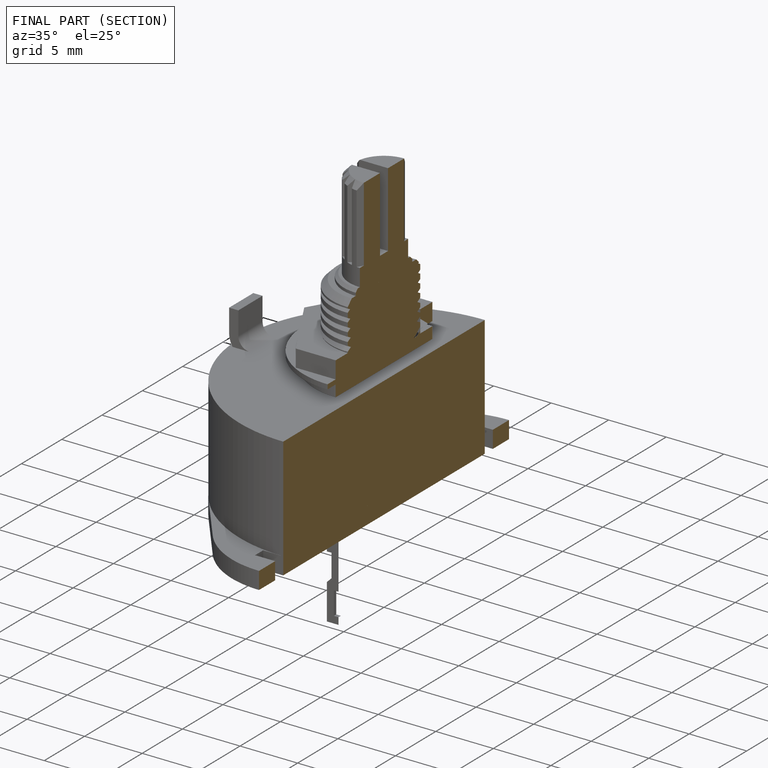
[diagram: finished part — half-section view (interior)]
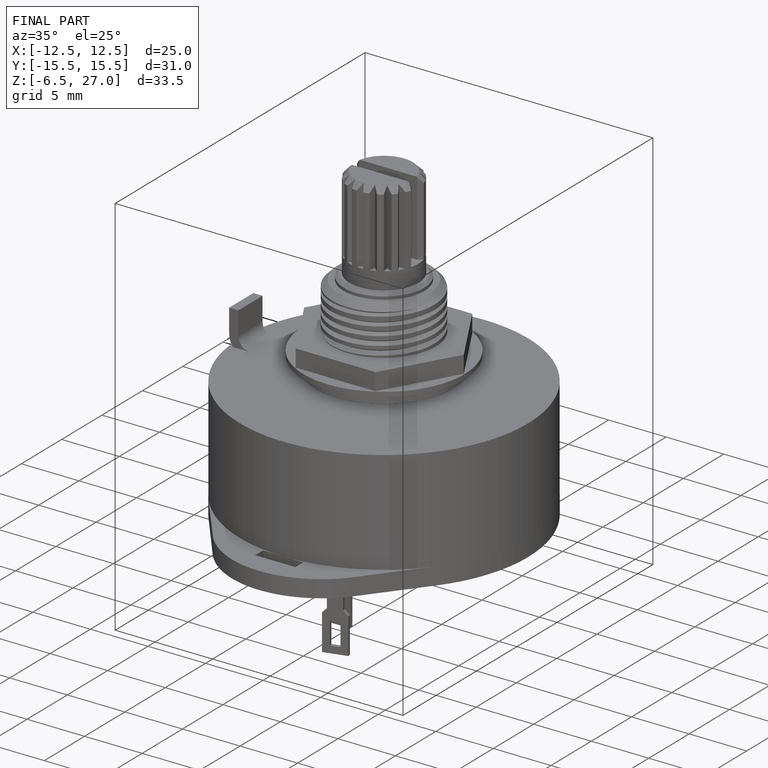
[diagram: finished part — iso view with bounding-box wireframe]
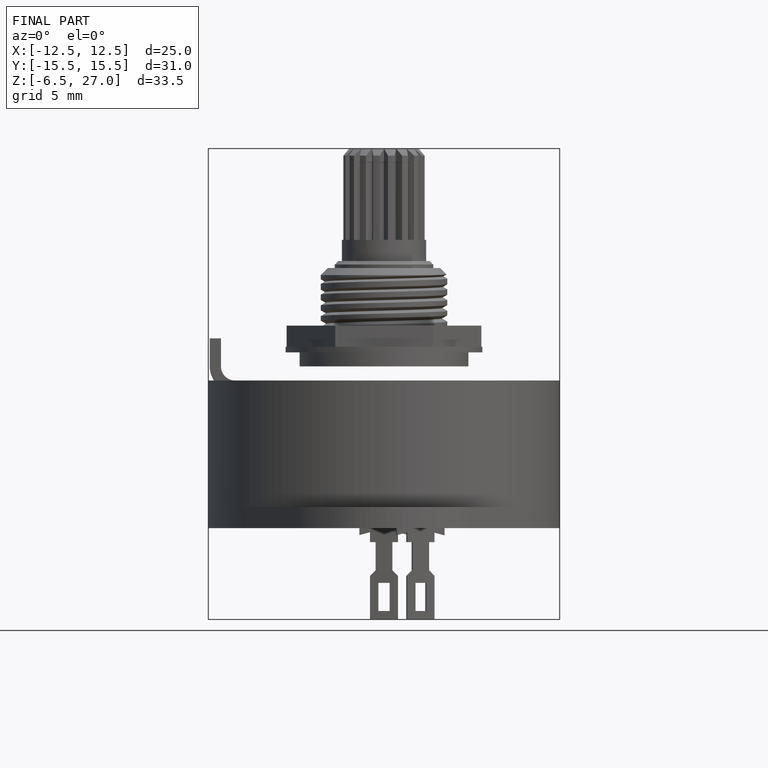
[diagram: finished part — front view with bounding-box wireframe]
